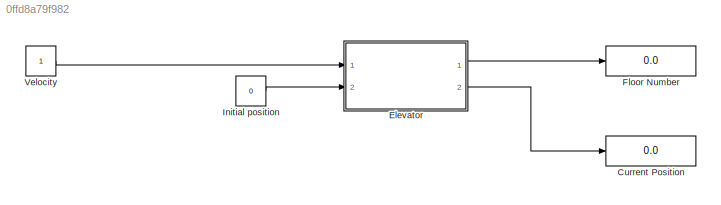
MODEL slx_0ffd8a79f982
KIND model
BLOCK [Display] Current Position
  Decimation = 1
  Ports = [1]
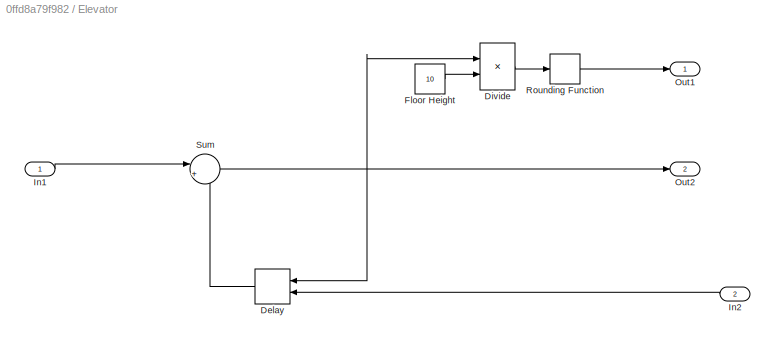
BLOCK [SubSystem] Elevator
  Ports = [2, 2]
  RequestExecContextInheritance = off
BLOCK [Delay] Elevator/Delay
  DelayLength = 10000
  InitialCondition = 2
  InitialConditionSource = Input port
  InputPortMap = u0,p4
  Ports = [2, 1]
  SampleTime = .00001
BLOCK [Product] Elevator/Divide
  InputSameDT = off
  Inputs = */
  LockScale = on
  OutDataTypeStr = Inherit: Inherit via internal rule
  Ports = [2, 1]
  RndMeth = Nearest
  SaturateOnIntegerOverflow = off
BLOCK [Constant] Elevator/Floor Height
  Value = 10
BLOCK [Inport] Elevator/In1
  IconDisplay = Port number
BLOCK [Inport] Elevator/In2
  IconDisplay = Port number
  Port = 2
BLOCK [Outport] Elevator/Out1
  IconDisplay = Port number
BLOCK [Outport] Elevator/Out2
  IconDisplay = Port number
  Port = 2
BLOCK [Rounding] Elevator/Rounding Function
BLOCK [Sum] Elevator/Sum
  IconShape = round
  InputSameDT = off
  Inputs = |++
  OutDataTypeStr = Inherit: Inherit via internal rule
  Ports = [2, 1]
  SaturateOnIntegerOverflow = off
BLOCK [Display] Floor Number
  Decimation = 1
  Ports = [1]
BLOCK [Constant] Initial position
  Value = 0
BLOCK [Constant] Velocity
LINE Elevator/Delay:1 -> Elevator/Sum:2
LINE Elevator/Divide:1 -> Elevator/Rounding Function:1
LINE Elevator/Floor Height:1 -> Elevator/Divide:2
LINE Elevator/In1:1 -> Elevator/Sum:1
LINE Elevator/In2:1 -> Elevator/Delay:2
LINE Elevator/Rounding Function:1 -> Elevator/Out1:1
NET Elevator/Sum:1 -> Elevator/Delay:1, Elevator/Divide:1, Elevator/Out2:1
LINE Elevator:1 -> Floor Number:1
LINE Elevator:2 -> Current Position:1
LINE Initial position:1 -> Elevator:2
LINE Velocity:1 -> Elevator:1
note: NET lines group one-source signal fan-out (src -> all destinations, sorted); 1:1 wires keep LINE
